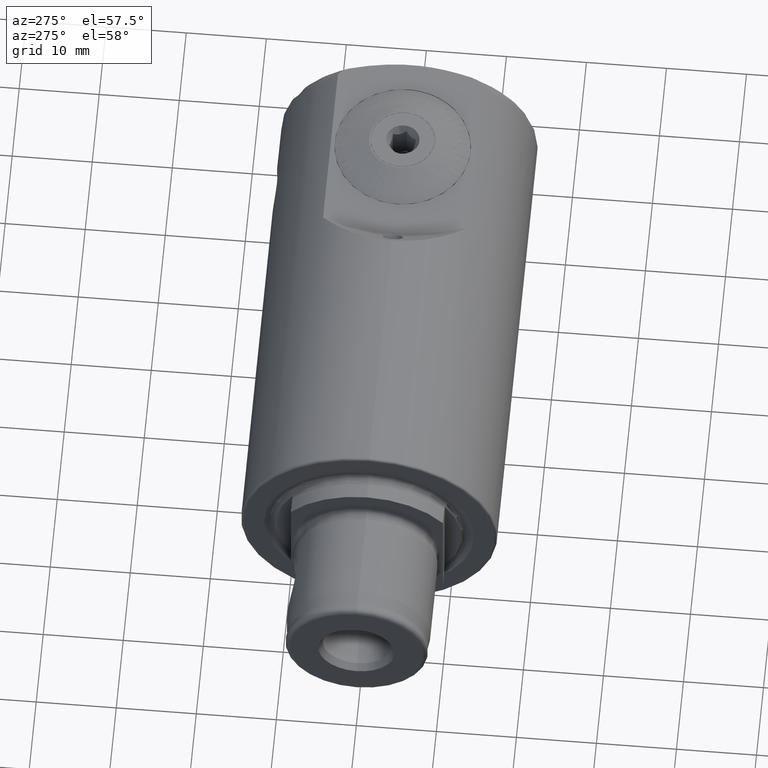
[diagram: clean part render]
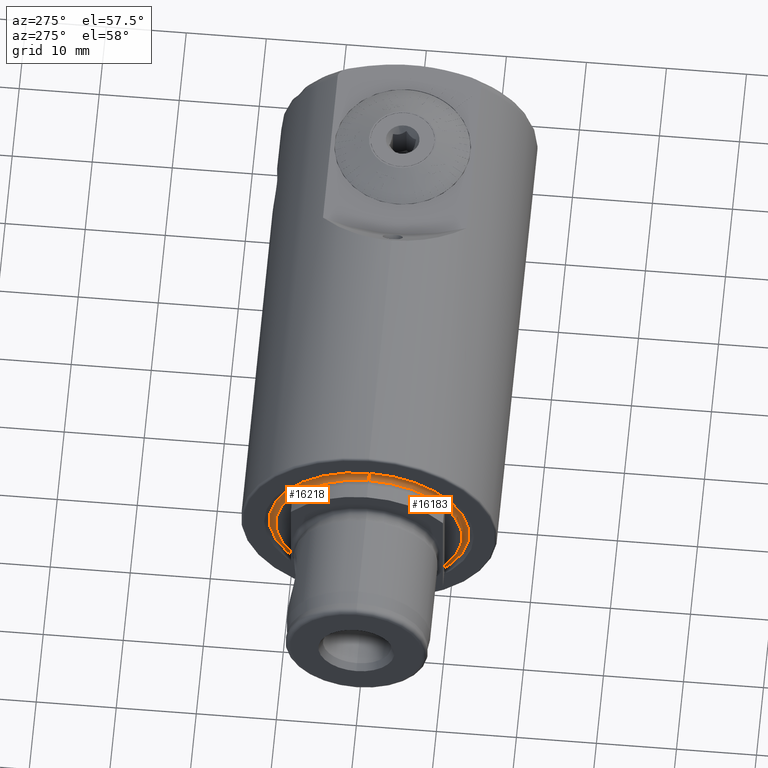
[diagram: same view with one multi-face feature highlighted, each face labeled with its STEP entity id]
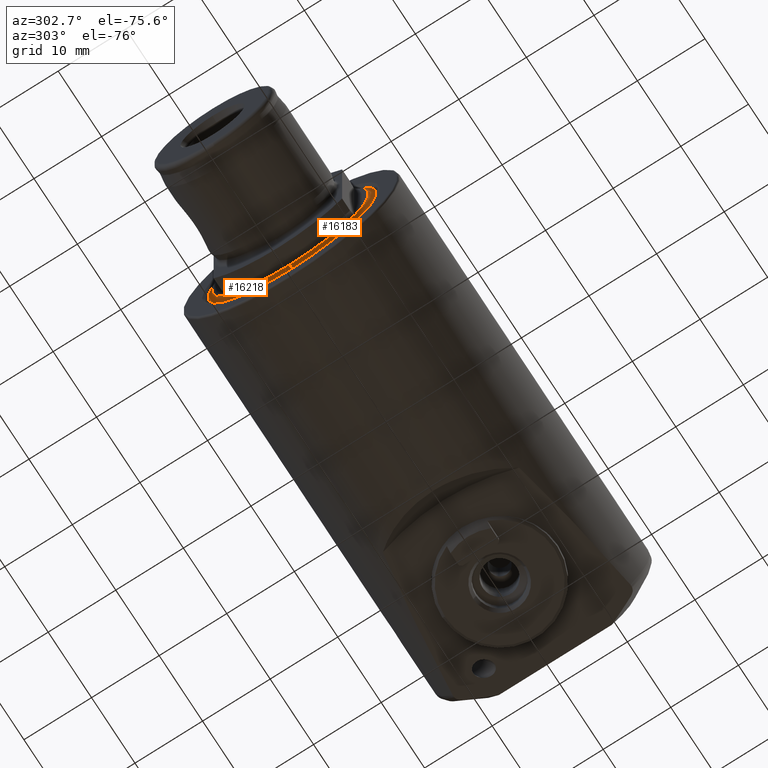
[diagram: same view with one multi-face feature highlighted, each face labeled with its STEP entity id]
A machine part, auxiliary view. The highlighted faces form ONE feature: a constant-radius fillet chain: 2 tangent blend faces with common blend radius 0.6 mm. The faces share edges in the B-rep.
A second angle (auxiliary view) of the same feature is appended — it is thin or edge-on in the first view.
Their STEP definitions:
[1] entity #16218 (Torus):
#136 = AXIS2_PLACEMENT_3D ( 'NONE', #17604, #17606, #17608 ) ;
#137 = AXIS2_PLACEMENT_3D ( 'NONE', #17612, #17613, #17614 ) ;
#234 = AXIS2_PLACEMENT_3D ( 'NONE', #11779, #11780, #11781 ) ;
#236 = AXIS2_PLACEMENT_3D ( 'NONE', #11795, #11796, #11797 ) ;
#327 = AXIS2_PLACEMENT_3D ( 'NONE', #9182, #9180, #9185 ) ;
#530 = VERTEX_POINT ( 'NONE', #16263 ) ;
#603 = VERTEX_POINT ( 'NONE', #16294 ) ;
#4948 = B_SPLINE_CURVE_WITH_KNOTS ( 'NONE', 3,
 ( #18743, #18744, #18745, #18746, #18747 ),
 .UNSPECIFIED., .F., .F.,
 ( 4, 1, 4 ),
 ( 0.004657220135990436000, 0.004707463845515501600, 0.004757707555040566400 ),
 .UNSPECIFIED. ) ;
#4952 = B_SPLINE_CURVE_WITH_KNOTS ( 'NONE', 3,
 ( #18749, #18754, #18755, #18756, #18757, #18758 ),
 .UNSPECIFIED., .F., .F.,
 ( 4, 2, 4 ),
 ( 5.664496915216983400E-005, 0.0001069768672939435600, 0.0001573087654357172700 ),
 .UNSPECIFIED. ) ;
#5353 = VERTEX_POINT ( 'NONE', #11547 ) ;
#6213 = VERTEX_POINT ( 'NONE', #11566 ) ;
#6221 = VERTEX_POINT ( 'NONE', #11574 ) ;
#6533 = EDGE_CURVE ( 'NONE', #12101, #12077, #13159, .T. ) ;
#6535 = EDGE_CURVE ( 'NONE', #6221, #12081, #4948, .T. ) ;
#6537 = EDGE_CURVE ( 'NONE', #6221, #6213, #13172, .T. ) ;
#6539 = EDGE_CURVE ( 'NONE', #5353, #6213, #4952, .T. ) ;
#8989 = ORIENTED_EDGE ( 'NONE', *, *, #16055, .F. ) ;
#8990 = ORIENTED_EDGE ( 'NONE', *, *, #11119, .T. ) ;
#8991 = ORIENTED_EDGE ( 'NONE', *, *, #6533, .T. ) ;
#8992 = ORIENTED_EDGE ( 'NONE', *, *, #11118, .F. ) ;
#8993 = ORIENTED_EDGE ( 'NONE', *, *, #16059, .F. ) ;
#8994 = ORIENTED_EDGE ( 'NONE', *, *, #6535, .F. ) ;
#8995 = ORIENTED_EDGE ( 'NONE', *, *, #6537, .T. ) ;
#8996 = ORIENTED_EDGE ( 'NONE', *, *, #6539, .F. ) ;
#9180 = DIRECTION ( 'NONE',  ( -1.000000000000000000, -0.0000000000000000000, -0.0000000000000000000 ) ) ;
#9182 = CARTESIAN_POINT ( 'NONE',  ( 17.75000000000000000, 0.0000000000000000000, 0.0000000000000000000 ) ) ;
#9185 = DIRECTION ( 'NONE',  ( 0.0000000000000000000, 0.0000000000000000000, 1.000000000000000000 ) ) ;
#9989 = CIRCLE ( 'NONE', #234, 11.62500000000000000 ) ;
#9994 = CIRCLE ( 'NONE', #236, 11.62500000000000000 ) ;
#10172 = FACE_OUTER_BOUND ( 'NONE', #16578, .T. ) ;
#10174 = TOROIDAL_SURFACE ( 'NONE', #327, 12.22500000000000000, 0.6000000000000007500 ) ;
#11118 = EDGE_CURVE ( 'NONE', #530, #12077, #13502, .T. ) ;
#11119 = EDGE_CURVE ( 'NONE', #603, #12101, #13503, .T. ) ;
#11547 = CARTESIAN_POINT ( 'NONE',  ( 17.75000000000000000, 9.500000000000000000, 6.700046641628693700 ) ) ;
#11566 = CARTESIAN_POINT ( 'NONE',  ( 17.85000000000000100, 9.500000000000000000, 6.714596780918525600 ) ) ;
#11574 = CARTESIAN_POINT ( 'NONE',  ( 17.85000000000000100, 9.500000000000000000, -6.714596780918525600 ) ) ;
#11779 = CARTESIAN_POINT ( 'NONE',  ( 17.75000000000000000, 0.0000000000000000000, 0.0000000000000000000 ) ) ;
#11780 = DIRECTION ( 'NONE',  ( -1.000000000000000000, -0.0000000000000000000, -0.0000000000000000000 ) ) ;
#11781 = DIRECTION ( 'NONE',  ( 0.0000000000000000000, 0.0000000000000000000, 1.000000000000000000 ) ) ;
#11795 = CARTESIAN_POINT ( 'NONE',  ( 17.75000000000000000, 0.0000000000000000000, 0.0000000000000000000 ) ) ;
#11796 = DIRECTION ( 'NONE',  ( -1.000000000000000000, -0.0000000000000000000, -0.0000000000000000000 ) ) ;
#11797 = DIRECTION ( 'NONE',  ( 0.0000000000000000000, 0.0000000000000000000, 1.000000000000000000 ) ) ;
#12077 = VERTEX_POINT ( 'NONE', #17749 ) ;
#12081 = VERTEX_POINT ( 'NONE', #17761 ) ;
#12101 = VERTEX_POINT ( 'NONE', #17791 ) ;
#13159 = CIRCLE ( 'NONE', #21941, 12.47857095704442000 ) ;
#13172 = CIRCLE ( 'NONE', #21943, 11.63339202169003900 ) ;
#13502 = CIRCLE ( 'NONE', #136, 0.5999999999999998700 ) ;
#13503 = CIRCLE ( 'NONE', #137, 0.5999999999999998700 ) ;
#16055 = EDGE_CURVE ( 'NONE', #603, #5353, #9989, .T. ) ;
#16059 = EDGE_CURVE ( 'NONE', #12081, #530, #9994, .T. ) ;
#16218 = ADVANCED_FACE ( 'NONE', ( #10172 ), #10174, .F. ) ;
#16263 = CARTESIAN_POINT ( 'NONE',  ( 17.75000000000000000, 1.423651904008797900E-015, -11.62499999999999800 ) ) ;
#16294 = CARTESIAN_POINT ( 'NONE',  ( 17.75000000000000000, 0.0000000000000000000, 11.62499999999999800 ) ) ;
#16578 = EDGE_LOOP ( 'NONE', ( #8989, #8990, #8991, #8992, #8993, #8994, #8995, #8996 ) ) ;
#17604 = CARTESIAN_POINT ( 'NONE',  ( 17.75000000000000000, 1.497130711957639200E-015, -12.22500000000000000 ) ) ;
#17606 = DIRECTION ( 'NONE',  ( -0.0000000000000000000, 1.000000000000000000, 1.224646799147353200E-016 ) ) ;
#17608 = DIRECTION ( 'NONE',  ( 0.0000000000000000000, -1.224646799147353200E-016, 1.000000000000000000 ) ) ;
#17612 = CARTESIAN_POINT ( 'NONE',  ( 17.75000000000000000, 0.0000000000000000000, 12.22500000000000000 ) ) ;
#17613 = DIRECTION ( 'NONE',  ( 0.0000000000000000000, -1.000000000000000000, 0.0000000000000000000 ) ) ;
#17614 = DIRECTION ( 'NONE',  ( 0.0000000000000000000, 0.0000000000000000000, -1.000000000000000000 ) ) ;
#17749 = CARTESIAN_POINT ( 'NONE',  ( 18.29378467222198500, 1.528184198047757700E-015, -12.47857095704442200 ) ) ;
#17761 = CARTESIAN_POINT ( 'NONE',  ( 17.75000000000019200, 9.500000000000000000, -6.700046641629389100 ) ) ;
#17791 = CARTESIAN_POINT ( 'NONE',  ( 18.29378467222198500, 0.0000000000000000000, 12.47857095704442200 ) ) ;
#18740 = CARTESIAN_POINT ( 'NONE',  ( 18.29378467222198500, 0.0000000000000000000, 0.0000000000000000000 ) ) ;
#18741 = DIRECTION ( 'NONE',  ( -1.000000000000000000, -0.0000000000000000000, -0.0000000000000000000 ) ) ;
#18742 = DIRECTION ( 'NONE',  ( 0.0000000000000000000, 0.0000000000000000000, 1.000000000000000000 ) ) ;
#18743 = CARTESIAN_POINT ( 'NONE',  ( 17.85000000000000100, 9.500000000000000000, -6.714596780918525600 ) ) ;
#18744 = CARTESIAN_POINT ( 'NONE',  ( 17.83372618720828800, 9.499999999999998200, -6.709830916109041300 ) ) ;
#18745 = CARTESIAN_POINT ( 'NONE',  ( 17.80079743515066000, 9.500000000000000000, -6.702570149717287200 ) ) ;
#18746 = CARTESIAN_POINT ( 'NONE',  ( 17.76707364839903000, 9.500000000000003600, -6.700046641628715000 ) ) ;
#18747 = CARTESIAN_POINT ( 'NONE',  ( 17.75000000000019200, 9.500000000000000000, -6.700046641629389100 ) ) ;
#18749 = CARTESIAN_POINT ( 'NONE',  ( 17.75000000000000000, 9.500000000000000000, 6.700046641628693700 ) ) ;
#18751 = CARTESIAN_POINT ( 'NONE',  ( 17.85000000000000100, 0.0000000000000000000, 0.0000000000000000000 ) ) ;
#18752 = DIRECTION ( 'NONE',  ( 1.000000000000000000, 0.0000000000000000000, 0.0000000000000000000 ) ) ;
#18753 = DIRECTION ( 'NONE',  ( 0.0000000000000000000, -8.881784197001252300E-016, 1.000000000000000000 ) ) ;
#18754 = CARTESIAN_POINT ( 'NONE',  ( 17.76678405882210000, 9.499999999999998200, 6.700046641629649400 ) ) ;
#18755 = CARTESIAN_POINT ( 'NONE',  ( 17.78353348251885900, 9.500000000000001800, 6.701266652348070200 ) ) ;
#18756 = CARTESIAN_POINT ( 'NONE',  ( 17.81696326179416800, 9.500000000000000000, 6.706139575171884600 ) ) ;
#18757 = CARTESIAN_POINT ( 'NONE',  ( 17.83375189535387100, 9.500000000000001800, 6.709838444863844000 ) ) ;
#18758 = CARTESIAN_POINT ( 'NONE',  ( 17.85000000000000100, 9.500000000000000000, 6.714596780918525600 ) ) ;
#21941 = AXIS2_PLACEMENT_3D ( 'NONE', #18740, #18741, #18742 ) ;
#21943 = AXIS2_PLACEMENT_3D ( 'NONE', #18751, #18752, #18753 ) ;
[2] entity #16183 (Torus):
#121 = AXIS2_PLACEMENT_3D ( 'NONE', #848, #849, #850 ) ;
#136 = AXIS2_PLACEMENT_3D ( 'NONE', #17604, #17606, #17608 ) ;
#137 = AXIS2_PLACEMENT_3D ( 'NONE', #17612, #17613, #17614 ) ;
#138 = AXIS2_PLACEMENT_3D ( 'NONE', #17627, #17629, #17631 ) ;
#239 = AXIS2_PLACEMENT_3D ( 'NONE', #11806, #11807, #11808 ) ;
#241 = AXIS2_PLACEMENT_3D ( 'NONE', #11822, #11823, #11824 ) ;
#294 = AXIS2_PLACEMENT_3D ( 'NONE', #9076, #9075, #9080 ) ;
#368 = VERTEX_POINT ( 'NONE', #16228 ) ;
#530 = VERTEX_POINT ( 'NONE', #16263 ) ;
#553 = VERTEX_POINT ( 'NONE', #16271 ) ;
#603 = VERTEX_POINT ( 'NONE', #16294 ) ;
#848 = CARTESIAN_POINT ( 'NONE',  ( 18.29378467222198500, 0.0000000000000000000, 0.0000000000000000000 ) ) ;
#849 = DIRECTION ( 'NONE',  ( -1.000000000000000000, -0.0000000000000000000, -0.0000000000000000000 ) ) ;
#850 = DIRECTION ( 'NONE',  ( 0.0000000000000000000, 0.0000000000000000000, 1.000000000000000000 ) ) ;
#1995 = EDGE_LOOP ( 'NONE', ( #20094, #20095, #20096, #20097, #20098, #20099, #20100, #20101 ) ) ;
#5172 = B_SPLINE_CURVE_WITH_KNOTS ( 'NONE', 3,
 ( #17610, #17611, #17616, #17618, #17620, #17621 ),
 .UNSPECIFIED., .F., .F.,
 ( 4, 2, 4 ),
 ( 0.004780420146730850200, 0.004830835549671891700, 0.004881250952612933200 ),
 .UNSPECIFIED. ) ;
#5174 = B_SPLINE_CURVE_WITH_KNOTS ( 'NONE', 3,
 ( #17622, #17625, #17635, #17637, #17639, #17641 ),
 .UNSPECIFIED., .F., .F.,
 ( 4, 2, 4 ),
 ( 0.0001786759295864325600, 0.0002291602545423276800, 0.0002796445794982228000 ),
 .UNSPECIFIED. ) ;
#9075 = DIRECTION ( 'NONE',  ( -1.000000000000000000, -0.0000000000000000000, -0.0000000000000000000 ) ) ;
#9076 = CARTESIAN_POINT ( 'NONE',  ( 17.75000000000000000, 0.0000000000000000000, 0.0000000000000000000 ) ) ;
#9080 = DIRECTION ( 'NONE',  ( 0.0000000000000000000, 0.0000000000000000000, 1.000000000000000000 ) ) ;
#9995 = CIRCLE ( 'NONE', #239, 11.62500000000000000 ) ;
#9999 = CIRCLE ( 'NONE', #241, 11.62500000000000000 ) ;
#10098 = TOROIDAL_SURFACE ( 'NONE', #294, 12.22500000000000000, 0.6000000000000007500 ) ;
#10104 = FACE_OUTER_BOUND ( 'NONE', #1995, .T. ) ;
#11092 = EDGE_CURVE ( 'NONE', #12077, #12101, #13467, .T. ) ;
#11118 = EDGE_CURVE ( 'NONE', #530, #12077, #13502, .T. ) ;
#11119 = EDGE_CURVE ( 'NONE', #603, #12101, #13503, .T. ) ;
#11120 = EDGE_CURVE ( 'NONE', #16133, #553, #5172, .T. ) ;
#11121 = EDGE_CURVE ( 'NONE', #16133, #16106, #13504, .T. ) ;
#11122 = EDGE_CURVE ( 'NONE', #368, #16106, #5174, .T. ) ;
#11806 = CARTESIAN_POINT ( 'NONE',  ( 17.75000000000000000, 0.0000000000000000000, 0.0000000000000000000 ) ) ;
#11807 = DIRECTION ( 'NONE',  ( -1.000000000000000000, -0.0000000000000000000, -0.0000000000000000000 ) ) ;
#11808 = DIRECTION ( 'NONE',  ( 0.0000000000000000000, 0.0000000000000000000, 1.000000000000000000 ) ) ;
#11822 = CARTESIAN_POINT ( 'NONE',  ( 17.75000000000000000, 0.0000000000000000000, 0.0000000000000000000 ) ) ;
#11823 = DIRECTION ( 'NONE',  ( -1.000000000000000000, -0.0000000000000000000, -0.0000000000000000000 ) ) ;
#11824 = DIRECTION ( 'NONE',  ( 0.0000000000000000000, 0.0000000000000000000, 1.000000000000000000 ) ) ;
#11925 = CARTESIAN_POINT ( 'NONE',  ( 17.85000000000000100, -9.500000000000000000, -6.714596780918525600 ) ) ;
#11952 = CARTESIAN_POINT ( 'NONE',  ( 17.85000000000000100, -9.500000000000000000, 6.714596780918525600 ) ) ;
#12077 = VERTEX_POINT ( 'NONE', #17749 ) ;
#12101 = VERTEX_POINT ( 'NONE', #17791 ) ;
#13467 = CIRCLE ( 'NONE', #121, 12.47857095704442000 ) ;
#13502 = CIRCLE ( 'NONE', #136, 0.5999999999999998700 ) ;
#13503 = CIRCLE ( 'NONE', #137, 0.5999999999999998700 ) ;
#13504 = CIRCLE ( 'NONE', #138, 11.63339202169003900 ) ;
#16062 = EDGE_CURVE ( 'NONE', #530, #368, #9995, .T. ) ;
#16066 = EDGE_CURVE ( 'NONE', #553, #603, #9999, .T. ) ;
#16106 = VERTEX_POINT ( 'NONE', #11925 ) ;
#16133 = VERTEX_POINT ( 'NONE', #11952 ) ;
#16183 = ADVANCED_FACE ( 'NONE', ( #10104 ), #10098, .F. ) ;
#16228 = CARTESIAN_POINT ( 'NONE',  ( 17.75000000000000000, -9.500000000000000000, -6.700046641628695500 ) ) ;
#16263 = CARTESIAN_POINT ( 'NONE',  ( 17.75000000000000000, 1.423651904008797900E-015, -11.62499999999999800 ) ) ;
#16271 = CARTESIAN_POINT ( 'NONE',  ( 17.75000000000053300, -9.500000000000000000, 6.700046641626118800 ) ) ;
#16294 = CARTESIAN_POINT ( 'NONE',  ( 17.75000000000000000, 0.0000000000000000000, 11.62499999999999800 ) ) ;
#17604 = CARTESIAN_POINT ( 'NONE',  ( 17.75000000000000000, 1.497130711957639200E-015, -12.22500000000000000 ) ) ;
#17606 = DIRECTION ( 'NONE',  ( -0.0000000000000000000, 1.000000000000000000, 1.224646799147353200E-016 ) ) ;
#17608 = DIRECTION ( 'NONE',  ( 0.0000000000000000000, -1.224646799147353200E-016, 1.000000000000000000 ) ) ;
#17610 = CARTESIAN_POINT ( 'NONE',  ( 17.85000000000000100, -9.500000000000000000, 6.714596780918525600 ) ) ;
#17611 = CARTESIAN_POINT ( 'NONE',  ( 17.83356650515997200, -9.499999999999998200, 6.709784152448638600 ) ) ;
#17612 = CARTESIAN_POINT ( 'NONE',  ( 17.75000000000000000, 0.0000000000000000000, 12.22500000000000000 ) ) ;
#17613 = DIRECTION ( 'NONE',  ( 0.0000000000000000000, -1.000000000000000000, 0.0000000000000000000 ) ) ;
#17614 = DIRECTION ( 'NONE',  ( 0.0000000000000000000, 0.0000000000000000000, -1.000000000000000000 ) ) ;
#17616 = CARTESIAN_POINT ( 'NONE',  ( 17.81698806079361900, -9.500000000000001800, 6.706146778912942500 ) ) ;
#17618 = CARTESIAN_POINT ( 'NONE',  ( 17.78365588648730600, -9.500000000000000000, 6.701280921600847800 ) ) ;
#17620 = CARTESIAN_POINT ( 'NONE',  ( 17.76688295397659100, -9.500000000000001800, 6.700046641628887300 ) ) ;
#17621 = CARTESIAN_POINT ( 'NONE',  ( 17.75000000000053300, -9.500000000000000000, 6.700046641626118800 ) ) ;
#17622 = CARTESIAN_POINT ( 'NONE',  ( 17.75000000000000000, -9.500000000000000000, -6.700046641628695500 ) ) ;
#17625 = CARTESIAN_POINT ( 'NONE',  ( 17.76679445351344800, -9.499999999999998200, -6.700046641629144900 ) ) ;
#17627 = CARTESIAN_POINT ( 'NONE',  ( 17.85000000000000100, 0.0000000000000000000, 0.0000000000000000000 ) ) ;
#17629 = DIRECTION ( 'NONE',  ( 1.000000000000000000, 0.0000000000000000000, 0.0000000000000000000 ) ) ;
#17631 = DIRECTION ( 'NONE',  ( 0.0000000000000000000, 0.0000000000000000000, 1.000000000000000000 ) ) ;
#17635 = CARTESIAN_POINT ( 'NONE',  ( 17.78355570613154400, -9.500000000000001800, -6.701268161716567900 ) ) ;
#17637 = CARTESIAN_POINT ( 'NONE',  ( 17.81701196812933200, -9.500000000000000000, -6.706148408644796000 ) ) ;
#17639 = CARTESIAN_POINT ( 'NONE',  ( 17.83376945138757500, -9.500000000000001800, -6.709843586233253300 ) ) ;
#17641 = CARTESIAN_POINT ( 'NONE',  ( 17.85000000000000100, -9.500000000000000000, -6.714596780918525600 ) ) ;
#17749 = CARTESIAN_POINT ( 'NONE',  ( 18.29378467222198500, 1.528184198047757700E-015, -12.47857095704442200 ) ) ;
#17791 = CARTESIAN_POINT ( 'NONE',  ( 18.29378467222198500, 0.0000000000000000000, 12.47857095704442200 ) ) ;
#20094 = ORIENTED_EDGE ( 'NONE', *, *, #16062, .F. ) ;
#20095 = ORIENTED_EDGE ( 'NONE', *, *, #11118, .T. ) ;
#20096 = ORIENTED_EDGE ( 'NONE', *, *, #11092, .T. ) ;
#20097 = ORIENTED_EDGE ( 'NONE', *, *, #11119, .F. ) ;
#20098 = ORIENTED_EDGE ( 'NONE', *, *, #16066, .F. ) ;
#20099 = ORIENTED_EDGE ( 'NONE', *, *, #11120, .F. ) ;
#20100 = ORIENTED_EDGE ( 'NONE', *, *, #11121, .T. ) ;
#20101 = ORIENTED_EDGE ( 'NONE', *, *, #11122, .F. ) ;